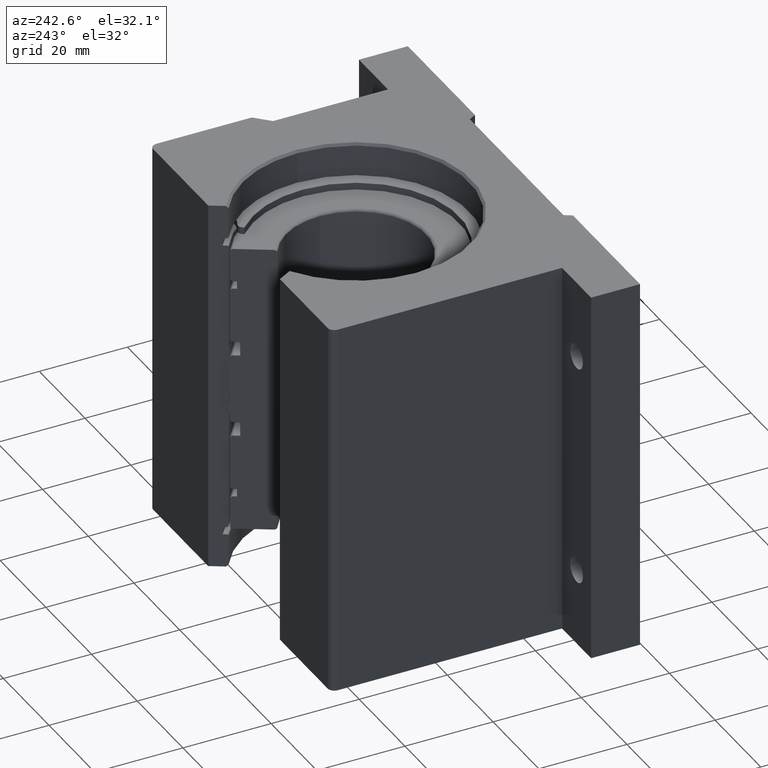
[diagram: clean part render]
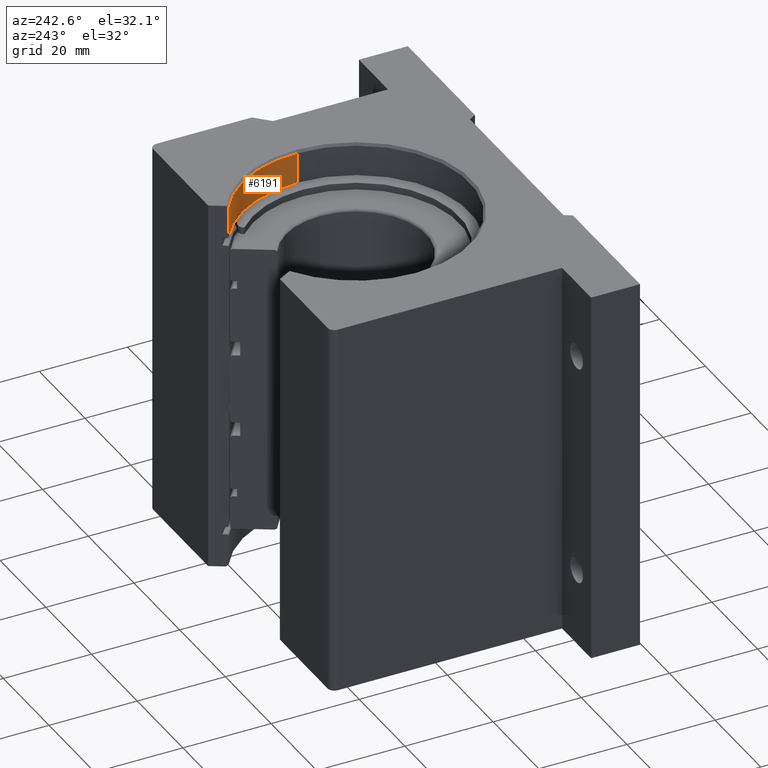
[diagram: same view with one face highlighted and labeled with its STEP entity id]
A machine part, auxiliary view. The second image highlights one B-rep face of the part: STEP entity #6191.
In plain terms, the highlighted cylindrical surface (partial cylindrical patch) has radius 25.7556 mm, axis along (0, 0, 1).
Its self-contained STEP definition (entity closure, byte-faithful):
#553 = CARTESIAN_POINT ( 'NONE',  ( 0.000000000000000000, 0.000000000000000000, -1.687501968503936967 ) ) ;
#727 = AXIS2_PLACEMENT_3D ( 'NONE', #553, #4247, #2592 ) ;
#860 = CARTESIAN_POINT ( 'NONE',  ( 0.5370186891519437289, 0.8601202982731707136, -1.687501968503936967 ) ) ;
#1254 = CARTESIAN_POINT ( 'NONE',  ( 0.5370186891519437289, 0.8601202982731707136, 1.667499999999999538 ) ) ;
#1275 = CIRCLE ( 'NONE', #1634, 1.014000000000000012 ) ;
#1408 = DIRECTION ( 'NONE',  ( -0.000000000000000000, -0.000000000000000000, 1.000000000000000000 ) ) ;
#1634 = AXIS2_PLACEMENT_3D ( 'NONE', #7209, #3316, #4982 ) ;
#1725 = AXIS2_PLACEMENT_3D ( 'NONE', #3392, #7288, #5647 ) ;
#1845 = VECTOR ( 'NONE', #1408, 39.37007874015748143 ) ;
#1935 = ORIENTED_EDGE ( 'NONE', *, *, #7188, .T. ) ;
#2330 = EDGE_CURVE ( 'NONE', #6845, #5270, #5972, .T. ) ;
#2562 = VERTEX_POINT ( 'NONE', #1254 ) ;
#2592 = DIRECTION ( 'NONE',  ( 1.000000000000000000, 0.000000000000000000, 0.000000000000000000 ) ) ;
#2633 = FACE_OUTER_BOUND ( 'NONE', #4216, .T. ) ;
#2913 = VERTEX_POINT ( 'NONE', #3844 ) ;
#3086 = LINE ( 'NONE', #860, #7299 ) ;
#3094 = ORIENTED_EDGE ( 'NONE', *, *, #3201, .T. ) ;
#3113 = CARTESIAN_POINT ( 'NONE',  ( 1.014000000000000012, 0.000000000000000000, 1.393252075382097388 ) ) ;
#3201 = EDGE_CURVE ( 'NONE', #2913, #6845, #1275, .T. ) ;
#3316 = DIRECTION ( 'NONE',  ( 0.000000000000000000, 0.000000000000000000, -1.000000000000000000 ) ) ;
#3392 = CARTESIAN_POINT ( 'NONE',  ( 0.000000000000000000, 0.000000000000000000, 1.667499999999999538 ) ) ;
#3402 = CYLINDRICAL_SURFACE ( 'NONE', #727, 1.014000000000000012 ) ;
#3844 = CARTESIAN_POINT ( 'NONE',  ( 0.5370186891519438399, 0.8601202982731707136, 1.393252075382097388 ) ) ;
#4216 = EDGE_LOOP ( 'NONE', ( #3094, #6802, #1935, #7061 ) ) ;
#4247 = DIRECTION ( 'NONE',  ( -0.000000000000000000, -0.000000000000000000, 1.000000000000000000 ) ) ;
#4911 = CIRCLE ( 'NONE', #1725, 1.014000000000000012 ) ;
#4982 = DIRECTION ( 'NONE',  ( 1.000000000000000000, 3.552713678800500140E-15, 0.000000000000000000 ) ) ;
#5270 = VERTEX_POINT ( 'NONE', #5385 ) ;
#5342 = DIRECTION ( 'NONE',  ( 0.000000000000000000, 0.000000000000000000, -1.000000000000000000 ) ) ;
#5385 = CARTESIAN_POINT ( 'NONE',  ( 1.014000000000000012, 0.000000000000000000, 1.667499999999999538 ) ) ;
#5647 = DIRECTION ( 'NONE',  ( 1.000000000000000000, 0.000000000000000000, 0.000000000000000000 ) ) ;
#5972 = LINE ( 'NONE', #6602, #1845 ) ;
#6191 = ADVANCED_FACE ( 'NONE', ( #2633 ), #3402, .F. ) ;
#6602 = CARTESIAN_POINT ( 'NONE',  ( 1.014000000000000012, 0.000000000000000000, -1.687501968503936967 ) ) ;
#6802 = ORIENTED_EDGE ( 'NONE', *, *, #2330, .T. ) ;
#6845 = VERTEX_POINT ( 'NONE', #3113 ) ;
#7061 = ORIENTED_EDGE ( 'NONE', *, *, #7103, .T. ) ;
#7103 = EDGE_CURVE ( 'NONE', #2562, #2913, #3086, .T. ) ;
#7188 = EDGE_CURVE ( 'NONE', #5270, #2562, #4911, .T. ) ;
#7209 = CARTESIAN_POINT ( 'NONE',  ( 0.000000000000000000, 0.000000000000000000, 1.393252075382097388 ) ) ;
#7288 = DIRECTION ( 'NONE',  ( 0.000000000000000000, 0.000000000000000000, 1.000000000000000000 ) ) ;
#7299 = VECTOR ( 'NONE', #5342, 39.37007874015748143 ) ;